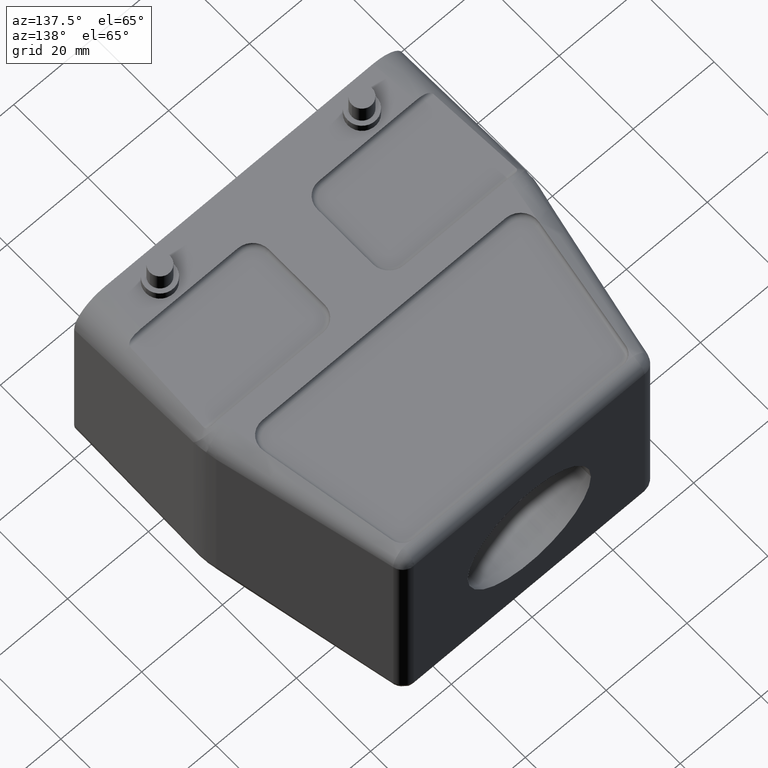
[diagram: clean part render]
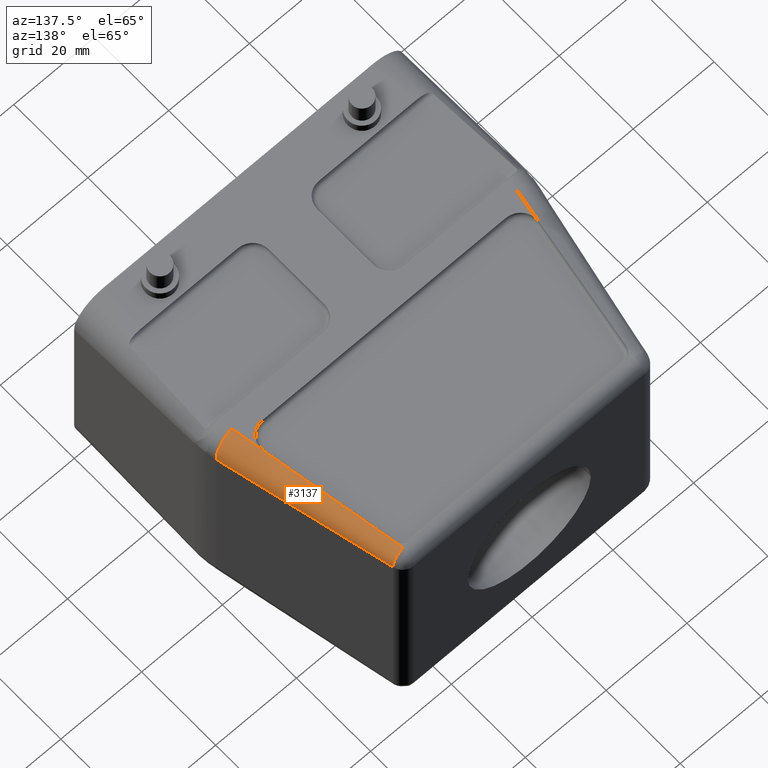
[diagram: same view with one face highlighted and labeled with its STEP entity id]
A machine part, auxiliary view. The second image highlights one B-rep face of the part: STEP entity #3137.
In plain terms, the highlighted conical surface has half-angle 2.566 deg.
Its self-contained STEP definition (entity closure, byte-faithful):
#395=DIRECTION('',(-1.747579567923E-1,9.846114241353E-1,6.124767494669E-12));
#396=VECTOR('',#395,7.429368843419E0);
#397=CARTESIAN_POINT('',(3.538694168593E1,-2.616009608774E0,2.799999999985E1));
#398=LINE('',#397,#396);
#522=DIRECTION('',(-1.747579567916E-1,9.846114241354E-1,1.053434391651E-12));
#523=VECTOR('',#522,2.952966147500E1);
#524=CARTESIAN_POINT('',(3.408860036660E1,4.699031828571E0,2.799999999989E1));
#525=LINE('',#524,#523);
#526=CARTESIAN_POINT('',(2.848864225390E1,3.624999999999E1,2.799999999993E1));
#527=CARTESIAN_POINT('',(2.875611604888E1,3.629618175813E1,2.800000409086E1));
#528=CARTESIAN_POINT('',(2.929068653669E1,3.639012556124E1,2.792846348115E1));
#529=CARTESIAN_POINT('',(3.003582234826E1,3.653194587944E1,2.761390291054E1));
#530=CARTESIAN_POINT('',(3.067320642770E1,3.666281900652E1,2.711415632452E1));
#531=CARTESIAN_POINT('',(3.116005367340E1,3.677465960818E1,2.646285678622E1));
#532=CARTESIAN_POINT('',(3.146261090230E1,3.685989400165E1,2.570486431983E1));
#533=CARTESIAN_POINT('',(3.152795003113E1,3.689455428519E1,2.516302939522E1));
#534=CARTESIAN_POINT('',(3.152534919274E1,3.690613437086E1,2.489223606302E1));
#536=CARTESIAN_POINT('',(3.534883095610E1,-2.401288282931E0,2.313392997585E1));
#537=DIRECTION('',(1.745827004079E-1,-9.836240044884E-1,-4.477385969948E-2));
#538=DIRECTION('',(9.845937202419E-1,1.748461585843E-1,-2.006710884607E-3));
#539=AXIS2_PLACEMENT_3D('',#536,#537,#538);
#604=DIRECTION('',(-1.747579567960E-1,9.846114241347E-1,1.370547879405E-12));
#605=VECTOR('',#604,2.514419467004E0);
#606=CARTESIAN_POINT('',(2.892805706248E1,3.377427386771E1,2.799999999992E1));
#607=LINE('',#606,#605);
#777=DIRECTION('',(2.184916808650E-1,-9.748090377053E-1,-4.481880633108E-2));
#778=VECTOR('',#777,3.944951221272E1);
#779=CARTESIAN_POINT('',(3.152534919274E1,3.690613437086E1,2.489223606302E1));
#780=LINE('',#779,#778);
#2227=CARTESIAN_POINT('',(3.408860036689E1,4.699031827170E0,2.8E1));
#2228=VERTEX_POINT('',#2227);
#2229=CARTESIAN_POINT('',(3.538694168593E1,-2.616009608774E0,2.799999999985E1));
#2230=VERTEX_POINT('',#2229);
#2238=CARTESIAN_POINT('',(2.848864225390E1,3.624999999999E1,2.799999999993E1));
#2240=VERTEX_POINT('',#2238);
#2242=CARTESIAN_POINT('',(2.892805706248E1,3.377427386771E1,2.799999999992E1));
#2243=VERTEX_POINT('',#2242);
#2286=CARTESIAN_POINT('',(4.014474253373E1,-1.549620535088E0,2.312415537769E1));
#2287=VERTEX_POINT('',#2286);
#2288=VERTEX_POINT('',#534);
#3120=CARTESIAN_POINT('',(3.190659491847E1,1.699276386434E1,2.401673332945E1));
#3121=DIRECTION('',(1.745827004079E-1,-9.836240044884E-1,-4.477385969948E-2));
#3122=DIRECTION('',(9.845937202419E-1,1.748461585843E-1,-2.006710884606E-3));
#3123=AXIS2_PLACEMENT_3D('',#3120,#3121,#3122);
#3124=CONICAL_SURFACE('',#3123,3.987265307602E0,2.566211093821E0);
#3125=ORIENTED_EDGE('',*,*,#2926,.T.);
#3127=ORIENTED_EDGE('',*,*,#3126,.T.);
#3129=ORIENTED_EDGE('',*,*,#3128,.T.);
#3131=ORIENTED_EDGE('',*,*,#3130,.T.);
#3133=ORIENTED_EDGE('',*,*,#3132,.T.);
#3134=ORIENTED_EDGE('',*,*,#3112,.T.);
#3135=EDGE_LOOP('',(#3125,#3127,#3129,#3131,#3133,#3134));
#3136=FACE_OUTER_BOUND('',#3135,.F.);
#3137=ADVANCED_FACE('',(#3136),#3124,.T.);
#535=B_SPLINE_CURVE_WITH_KNOTS('',3,(#526,#527,#528,#529,#530,#531,#532,#533,
#534),.UNSPECIFIED.,.F.,.F.,(4,1,1,1,1,1,4),(0.E0,1.666666666667E-1,
3.333333333333E-1,5.E-1,6.666666666667E-1,8.333333333333E-1,1.E0),
.UNSPECIFIED.);
#540=CIRCLE('',#539,4.870954871067E0);
#2926=EDGE_CURVE('',#2230,#2228,#398,.T.);
#3112=EDGE_CURVE('',#2287,#2230,#540,.T.);
#3126=EDGE_CURVE('',#2228,#2243,#525,.T.);
#3128=EDGE_CURVE('',#2243,#2240,#607,.T.);
#3130=EDGE_CURVE('',#2240,#2288,#535,.T.);
#3132=EDGE_CURVE('',#2288,#2287,#780,.T.);